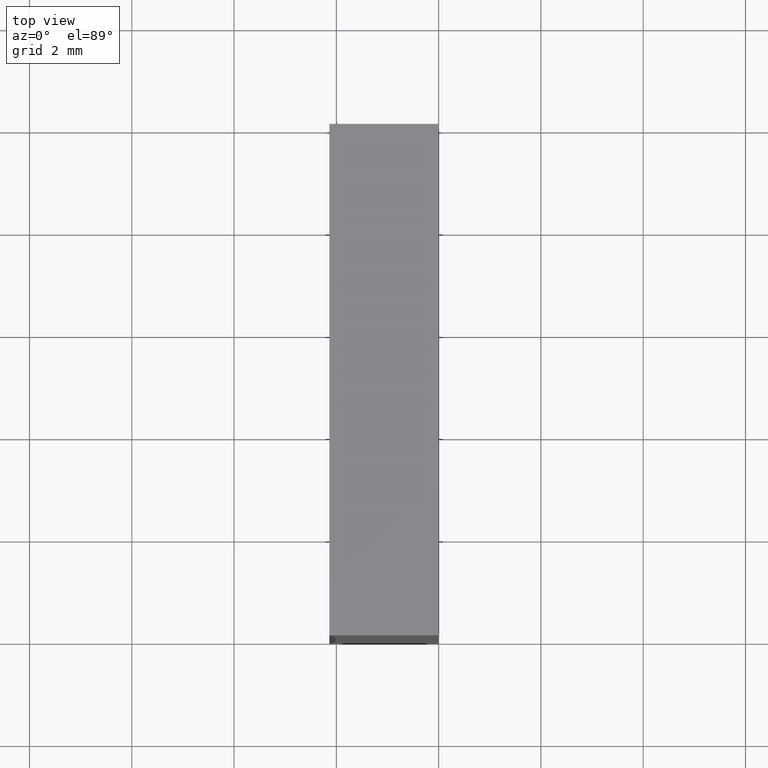
[diagram: clean part render]
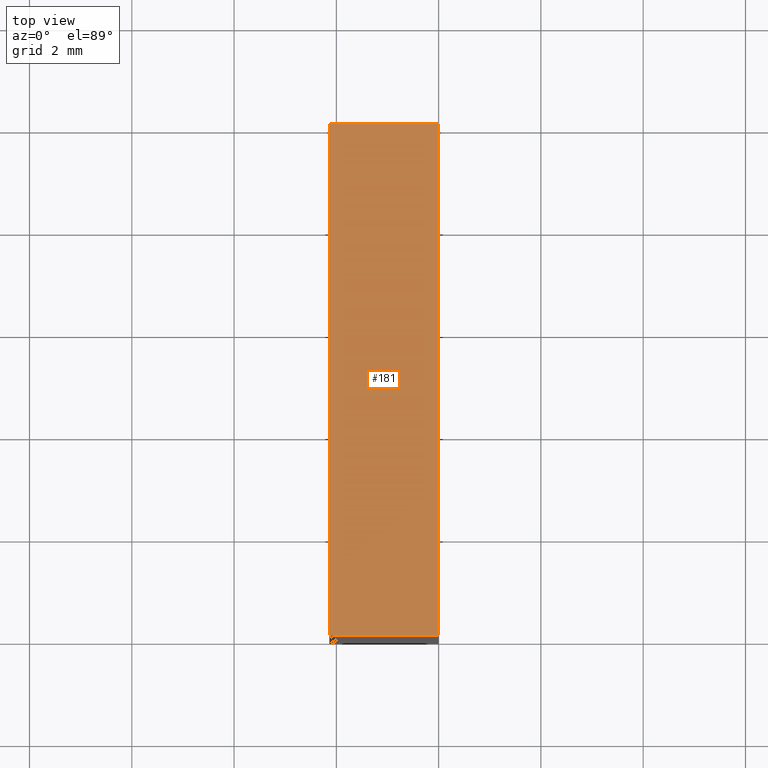
[diagram: same view with one face highlighted and labeled with its STEP entity id]
A machine part, top view. The second image highlights one B-rep face of the part: STEP entity #181.
In plain terms, the highlighted planar face has unit normal (0, 0, -1).
Its self-contained STEP definition (entity closure, byte-faithful):
#2 = EDGE_CURVE ( 'NONE', #93, #31, #197, .T. ) ;
#5 = DIRECTION ( 'NONE',  ( -0.0000000000000000000, -1.000000000000000000, -0.0000000000000000000 ) ) ;
#13 = VECTOR ( 'NONE', #5, 1000.000000000000000 ) ;
#22 = ORIENTED_EDGE ( 'NONE', *, *, #130, .F. ) ;
#28 = EDGE_LOOP ( 'NONE', ( #157, #134, #22, #163 ) ) ;
#31 = VERTEX_POINT ( 'NONE', #156 ) ;
#37 = CARTESIAN_POINT ( 'NONE',  ( 6.123233995736766300E-016, 10.00000000000000000, 10.00000000000000000 ) ) ;
#39 = CARTESIAN_POINT ( 'NONE',  ( 6.123233995736766300E-016, 0.0000000000000000000, 10.00000000000000000 ) ) ;
#42 = FACE_OUTER_BOUND ( 'NONE', #28, .T. ) ;
#57 = VECTOR ( 'NONE', #58, 1000.000000000000000 ) ;
#58 = DIRECTION ( 'NONE',  ( -0.0000000000000000000, -1.000000000000000000, -0.0000000000000000000 ) ) ;
#68 = LINE ( 'NONE', #129, #13 ) ;
#72 = DIRECTION ( 'NONE',  ( 8.119784972569434800E-016, 0.0000000000000000000, -1.000000000000000000 ) ) ;
#75 = CARTESIAN_POINT ( 'NONE',  ( 6.123233995736766300E-016, 10.00000000000000000, 10.00000000000000000 ) ) ;
#77 = EDGE_CURVE ( 'NONE', #114, #125, #68, .T. ) ;
#79 = CARTESIAN_POINT ( 'NONE',  ( -2.136415535432422800, 10.00000000000000000, 9.999999999999998200 ) ) ;
#93 = VERTEX_POINT ( 'NONE', #128 ) ;
#108 = LINE ( 'NONE', #75, #154 ) ;
#113 = VECTOR ( 'NONE', #119, 1000.000000000000000 ) ;
#114 = VERTEX_POINT ( 'NONE', #79 ) ;
#118 = LINE ( 'NONE', #39, #113 ) ;
#119 = DIRECTION ( 'NONE',  ( 1.000000000000000000, -0.0000000000000000000, 8.119784972569433800E-016 ) ) ;
#123 = AXIS2_PLACEMENT_3D ( 'NONE', #37, #72, #127 ) ;
#125 = VERTEX_POINT ( 'NONE', #174 ) ;
#127 = DIRECTION ( 'NONE',  ( -1.000000000000000000, 0.0000000000000000000, -8.119784972569434800E-016 ) ) ;
#128 = CARTESIAN_POINT ( 'NONE',  ( 6.123233995736766300E-016, 10.00000000000000000, 10.00000000000000000 ) ) ;
#129 = CARTESIAN_POINT ( 'NONE',  ( -2.136415535432422800, 10.00000000000000000, 9.999999999999998200 ) ) ;
#130 = EDGE_CURVE ( 'NONE', #114, #93, #108, .T. ) ;
#134 = ORIENTED_EDGE ( 'NONE', *, *, #2, .F. ) ;
#137 = PLANE ( 'NONE',  #123 ) ;
#154 = VECTOR ( 'NONE', #185, 1000.000000000000000 ) ;
#156 = CARTESIAN_POINT ( 'NONE',  ( 6.123233995736766300E-016, 0.0000000000000000000, 10.00000000000000000 ) ) ;
#157 = ORIENTED_EDGE ( 'NONE', *, *, #189, .T. ) ;
#163 = ORIENTED_EDGE ( 'NONE', *, *, #77, .T. ) ;
#174 = CARTESIAN_POINT ( 'NONE',  ( -2.136415535432422800, 0.0000000000000000000, 9.999999999999998200 ) ) ;
#176 = CARTESIAN_POINT ( 'NONE',  ( 6.123233995736766300E-016, 10.00000000000000000, 10.00000000000000000 ) ) ;
#181 = ADVANCED_FACE ( 'NONE', ( #42 ), #137, .F. ) ;
#185 = DIRECTION ( 'NONE',  ( 1.000000000000000000, -0.0000000000000000000, 8.119784972569433800E-016 ) ) ;
#189 = EDGE_CURVE ( 'NONE', #125, #31, #118, .T. ) ;
#197 = LINE ( 'NONE', #176, #57 ) ;